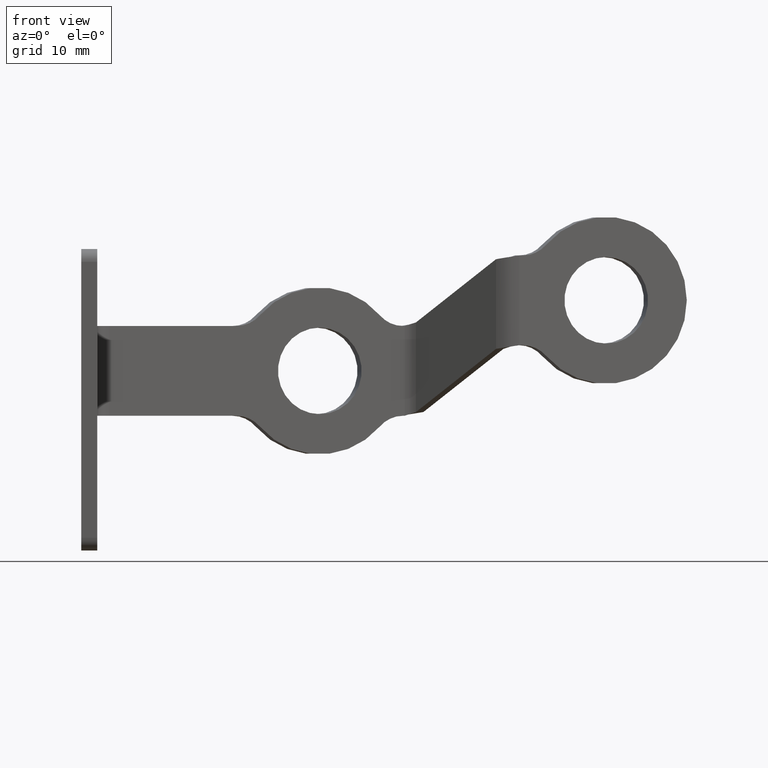
[diagram: clean part render]
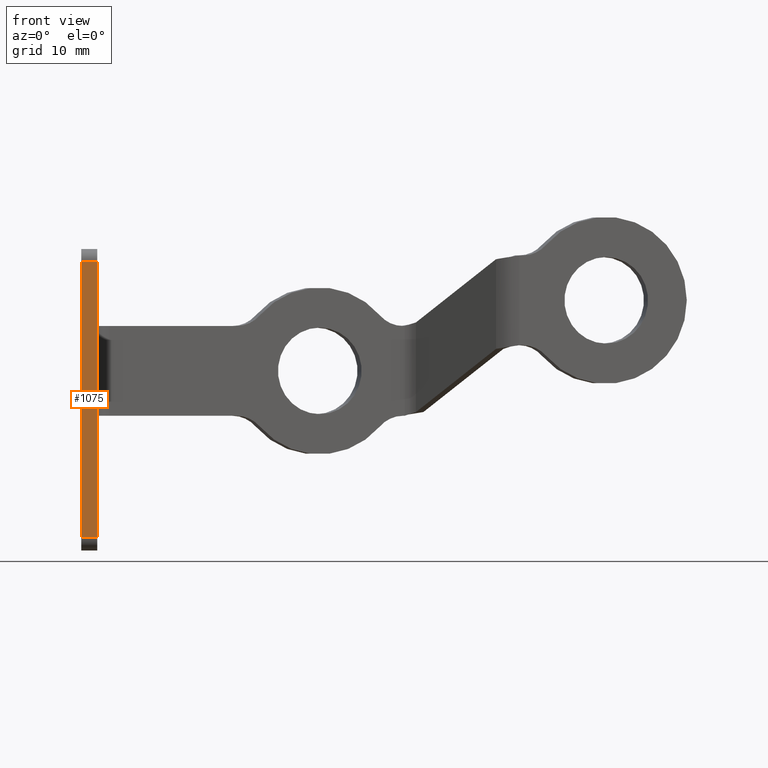
[diagram: same view with one face highlighted and labeled with its STEP entity id]
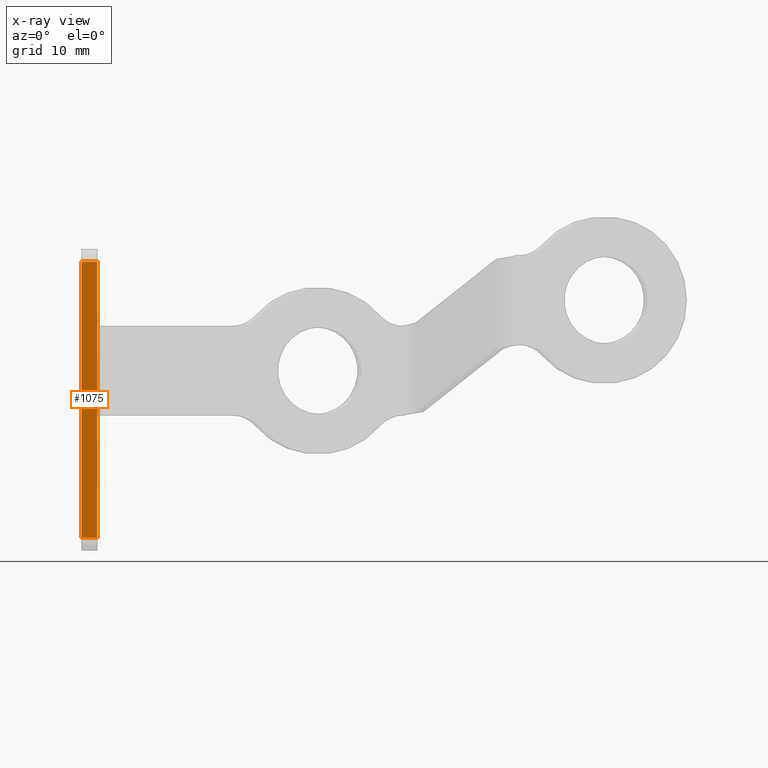
[diagram: x-ray of the same camera — body ghosted, the highlighted face saturated]
A machine part, front view. The second image highlights one B-rep face of the part: STEP entity #1075.
The next image is the same camera in x-ray: the body ghosted, the highlighted face saturated — about 0% of this face is hidden behind the body in this view.
In plain terms, the highlighted planar face has unit normal (0, -1, 0).
Its self-contained STEP definition (entity closure, byte-faithful):
#120=FACE_OUTER_BOUND('',#184,.T.);
#184=EDGE_LOOP('',(#782,#783,#784,#785));
#255=LINE('',#1606,#361);
#268=LINE('',#1645,#374);
#275=LINE('',#1662,#381);
#276=LINE('',#1664,#382);
#361=VECTOR('',#1284,10.);
#374=VECTOR('',#1315,10.);
#381=VECTOR('',#1334,10.);
#382=VECTOR('',#1337,10.);
#469=VERTEX_POINT('',#1603);
#470=VERTEX_POINT('',#1605);
#487=VERTEX_POINT('',#1643);
#490=VERTEX_POINT('',#1658);
#573=EDGE_CURVE('',#469,#470,#255,.T.);
#593=EDGE_CURVE('',#487,#469,#268,.T.);
#602=EDGE_CURVE('',#470,#490,#275,.T.);
#603=EDGE_CURVE('',#490,#487,#276,.T.);
#782=ORIENTED_EDGE('',*,*,#593,.F.);
#783=ORIENTED_EDGE('',*,*,#603,.F.);
#784=ORIENTED_EDGE('',*,*,#602,.F.);
#785=ORIENTED_EDGE('',*,*,#573,.F.);
#1039=PLANE('',#1166);
#1075=ADVANCED_FACE('',(#120),#1039,.T.);
#1166=AXIS2_PLACEMENT_3D('',#1663,#1335,#1336);
#1284=DIRECTION('',(0.,0.,1.));
#1315=DIRECTION('',(-1.,0.,0.));
#1334=DIRECTION('',(1.,0.,0.));
#1335=DIRECTION('center_axis',(0.,-1.,0.));
#1336=DIRECTION('ref_axis',(0.,0.,-1.));
#1337=DIRECTION('',(0.,0.,-1.));
#1603=CARTESIAN_POINT('',(0.,-9.,-11.5));
#1605=CARTESIAN_POINT('',(0.,-9.,31.5));
#1606=CARTESIAN_POINT('',(0.,-9.,-13.5));
#1643=CARTESIAN_POINT('',(2.5,-9.,-11.5));
#1645=CARTESIAN_POINT('',(0.,-9.,-11.5));
#1658=CARTESIAN_POINT('',(2.5,-9.,31.5));
#1662=CARTESIAN_POINT('',(0.,-9.,31.5));
#1663=CARTESIAN_POINT('Origin',(0.,-9.,33.5));
#1664=CARTESIAN_POINT('',(2.5,-9.,-13.5));